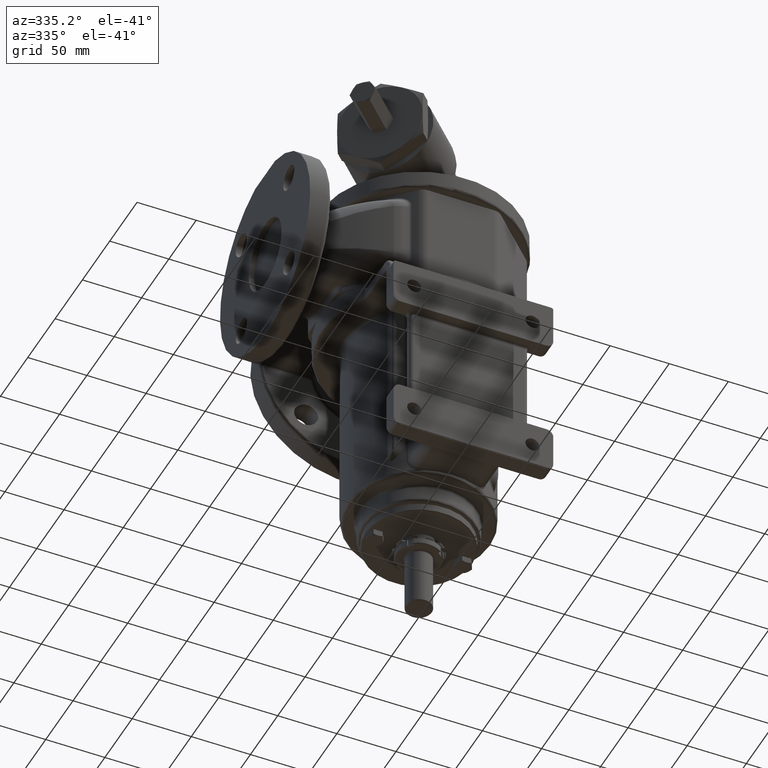
[diagram: clean part render]
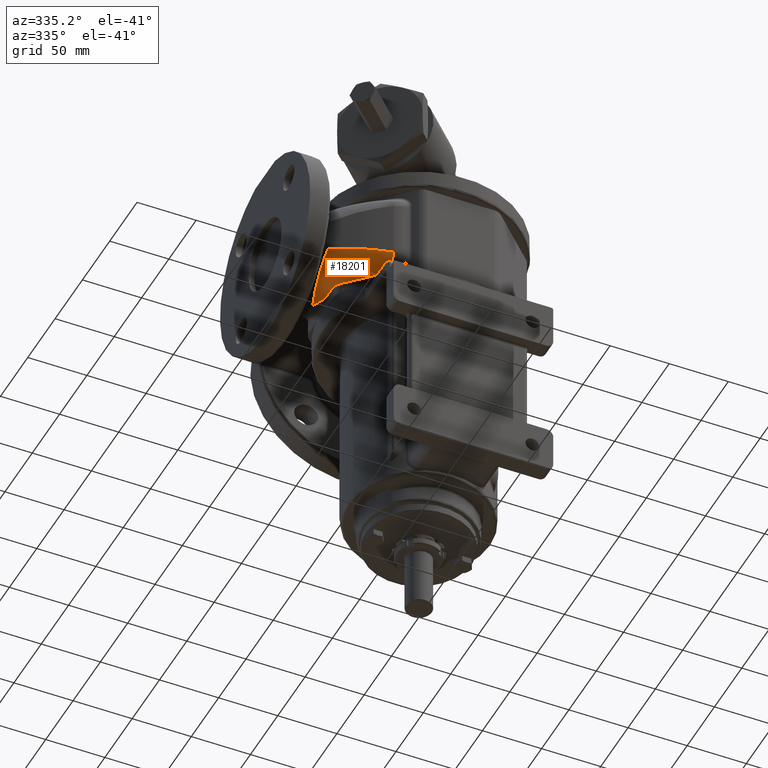
[diagram: same view with one face highlighted and labeled with its STEP entity id]
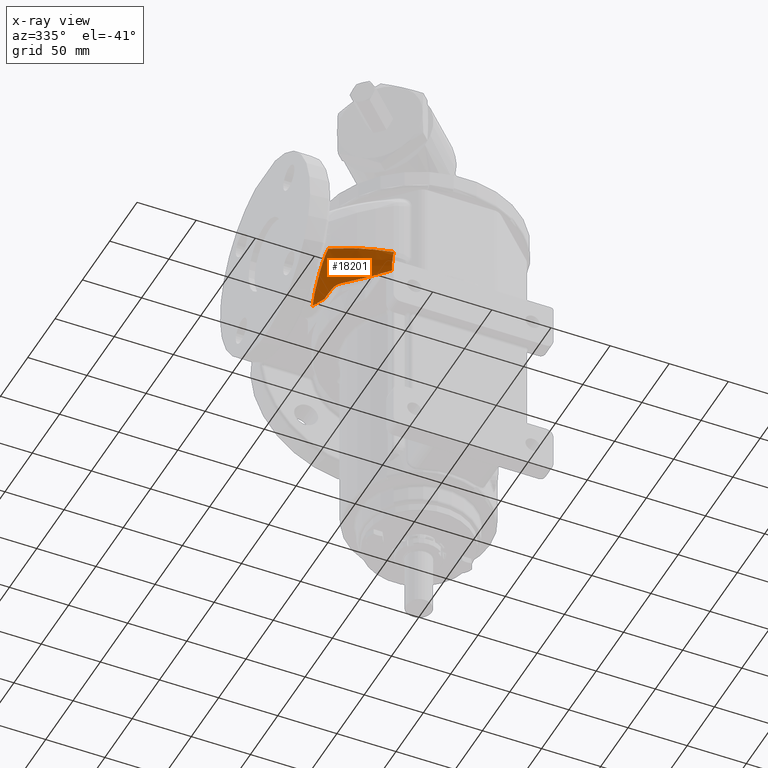
[diagram: x-ray of the same camera — body ghosted, the highlighted face saturated]
A machine part, auxiliary view. The second image highlights one B-rep face of the part: STEP entity #18201.
The next image is the same camera in x-ray: the body ghosted, the highlighted face saturated — about 0% of this face is hidden behind the body in this view.
In plain terms, the highlighted face is a freeform B-spline surface patch.
Its self-contained STEP definition (entity closure, byte-faithful):
#1606=CARTESIAN_POINT('',(-8.047413439077E1,-3.208808836774E1,
1.308507916745E1));
#1607=CARTESIAN_POINT('',(-7.798800857664E1,-3.462170206092E1,
1.295863965837E1));
#1608=CARTESIAN_POINT('',(-7.324966254225E1,-3.941239079710E1,
1.281667196551E1));
#1609=CARTESIAN_POINT('',(-6.675518718592E1,-4.585366600629E1,
1.281283031524E1));
#1610=CARTESIAN_POINT('',(-6.085321075917E1,-5.157657148895E1,
1.298604054118E1));
#1611=CARTESIAN_POINT('',(-5.551644056877E1,-5.662616673302E1,
1.335296136524E1));
#1612=CARTESIAN_POINT('',(-5.231638036591E1,-5.957968758724E1,
1.375660381942E1));
#1613=CARTESIAN_POINT('',(-5.081152447326E1,-6.095348885946E1,
1.400642323540E1));
#1615=CARTESIAN_POINT('',(-8.446781736933E1,-2.311346333166E1,
1.256506312222E1));
#1616=CARTESIAN_POINT('',(-8.442724705142E1,-2.393726765799E1,
1.265445762699E1));
#1617=CARTESIAN_POINT('',(-8.419282381083E1,-2.556188686391E1,
1.282855758478E1));
#1618=CARTESIAN_POINT('',(-8.338136211917E1,-2.795523119072E1,
1.303339662707E1));
#1619=CARTESIAN_POINT('',(-8.214413099516E1,-3.016988986125E1,
1.313315355132E1));
#1620=CARTESIAN_POINT('',(-8.107241798895E1,-3.147837568122E1,
1.311550645273E1));
#1621=CARTESIAN_POINT('',(-8.047413439077E1,-3.208808836774E1,
1.308507916745E1));
#1623=CARTESIAN_POINT('',(-8.5E1,-1.125532978994E1,1.2E1));
#1624=CARTESIAN_POINT('',(-8.494165248477E1,-1.271121173030E1,
1.200000001406E1));
#1625=CARTESIAN_POINT('',(-8.482295508412E1,-1.553439694534E1,
1.203910573419E1));
#1626=CARTESIAN_POINT('',(-8.464417954935E1,-1.947701580606E1,
1.222457691661E1));
#1627=CARTESIAN_POINT('',(-8.452596820710E1,-2.193267019026E1,
1.243693021975E1));
#1628=CARTESIAN_POINT('',(-8.446781736933E1,-2.311346333166E1,
1.256506312222E1));
#1630=CARTESIAN_POINT('',(-8.984162035951E1,1.852250310862E-10,1.2E1));
#1631=CARTESIAN_POINT('',(-8.937966233508E1,-1.261490178118E0,1.2E1));
#1632=CARTESIAN_POINT('',(-8.840575942735E1,-3.777500725120E0,1.2E1));
#1633=CARTESIAN_POINT('',(-8.679165358766E1,-7.532796190614E0,1.2E1));
#1634=CARTESIAN_POINT('',(-8.561446056205E1,-1.001744117737E1,1.2E1));
#1635=CARTESIAN_POINT('',(-8.5E1,-1.125532978994E1,1.2E1));
#1637=CARTESIAN_POINT('',(-8.984162035951E1,1.852250310862E-10,1.2E1));
#1638=CARTESIAN_POINT('',(-9.085631910902E1,-2.750468309315E0,
1.200000247839E1));
#1639=CARTESIAN_POINT('',(-9.263810933759E1,-8.036610746854E0,
1.236224199165E1));
#1640=CARTESIAN_POINT('',(-9.460349511560E1,-1.501171972855E1,
1.380037807420E1));
#1641=CARTESIAN_POINT('',(-9.598497959125E1,-2.106110522149E1,
1.594221695596E1));
#1642=CARTESIAN_POINT('',(-9.686456147365E1,-2.619884785258E1,
1.862034890517E1));
#1643=CARTESIAN_POINT('',(-9.731134235316E1,-3.048797525212E1,
2.170001408419E1));
#1644=CARTESIAN_POINT('',(-9.737073934403E1,-3.399744608006E1,
2.507963019626E1));
#1645=CARTESIAN_POINT('',(-9.706511664867E1,-3.679392340711E1,
2.868556429009E1));
#1646=CARTESIAN_POINT('',(-9.639342331683E1,-3.893168452364E1,
3.245713508812E1));
#1647=CARTESIAN_POINT('',(-9.567978824446E1,-3.994711296998E1,
3.504961178352E1));
#1648=CARTESIAN_POINT('',(-9.525158904514E1,-4.035556962305E1,
3.634007047109E1));
#1650=CARTESIAN_POINT('',(-9.525158904514E1,-4.035556962305E1,
3.634007047109E1));
#1651=CARTESIAN_POINT('',(-9.215633523432E1,-4.330811242351E1,
3.549994077137E1));
#1652=CARTESIAN_POINT('',(-8.569763391295E1,-4.891962892648E1,
3.380445024207E1));
#1653=CARTESIAN_POINT('',(-7.526501980612E1,-5.640522270560E1,
3.127221614836E1));
#1654=CARTESIAN_POINT('',(-6.421840096117E1,-6.286897364281E1,
2.882689996017E1));
#1655=CARTESIAN_POINT('',(-5.654658103833E1,-6.645349886389E1,
2.730641998006E1));
#1656=CARTESIAN_POINT('',(-5.264669600091E1,-6.806302520788E1,
2.658395863375E1));
#1691=CARTESIAN_POINT('',(-5.081152447326E1,-6.095348885946E1,
1.400642323540E1));
#1704=CARTESIAN_POINT('',(-4.486805216066E1,-5.603509425772E1,
2.608579098940E1));
#1705=DIRECTION('',(-8.217274336038E-1,5.390783045593E-1,1.848204707720E-1));
#1706=DIRECTION('',(-4.146788748109E-1,-3.431587170929E-1,-8.427832020566E-1));
#1707=AXIS2_PLACEMENT_3D('',#1704,#1705,#1706);
#4865=CARTESIAN_POINT('',(-9.525158904514E1,-4.035556962305E1,
3.634007047109E1));
#13229=CARTESIAN_POINT('',(-5.264669600091E1,-6.806302520788E1,
2.658395863375E1));
#13231=VERTEX_POINT('',#13229);
#13239=VERTEX_POINT('',#4865);
#13240=VERTEX_POINT('',#1637);
#13262=VERTEX_POINT('',#1691);
#13264=VERTEX_POINT('',#1606);
#13266=VERTEX_POINT('',#1615);
#13268=VERTEX_POINT('',#1623);
#17797=CARTESIAN_POINT('',(-1.154019871822E2,-1.614534470657E1,
4.334210592177E1));
#17798=CARTESIAN_POINT('',(-1.153111730169E2,-1.628390496585E1,
4.331050594327E1));
#17799=CARTESIAN_POINT('',(-1.150493979986E2,-1.668174541163E1,
4.321962507061E1));
#17800=CARTESIAN_POINT('',(-1.146136431289E2,-1.733659190204E1,
4.306932015101E1));
#17801=CARTESIAN_POINT('',(-1.140925715511E2,-1.810831305115E1,
4.289107145283E1));
#17802=CARTESIAN_POINT('',(-1.135663116853E2,-1.887649378418E1,
4.271250640172E1));
#17803=CARTESIAN_POINT('',(-1.130348874889E2,-1.964109942748E1,
4.253362190865E1));
#17804=CARTESIAN_POINT('',(-1.124983231439E2,-2.040209547117E1,
4.235441488076E1));
#17805=CARTESIAN_POINT('',(-1.119566430572E2,-2.115944757045E1,
4.217488222207E1));
#17806=CARTESIAN_POINT('',(-1.114098718582E2,-2.191312154733E1,
4.199502083434E1));
#17807=CARTESIAN_POINT('',(-1.108580343979E2,-2.266308339220E1,
4.181482761785E1));
#17808=CARTESIAN_POINT('',(-1.103011557474E2,-2.340929926547E1,
4.163429947230E1));
#17809=CARTESIAN_POINT('',(-1.097392611965E2,-2.415173549921E1,
4.145343329767E1));
#17810=CARTESIAN_POINT('',(-1.091723762523E2,-2.489035859870E1,
4.127222599511E1));
#17811=CARTESIAN_POINT('',(-1.086005266375E2,-2.562513524408E1,
4.109067446785E1));
#17812=CARTESIAN_POINT('',(-1.080237382893E2,-2.635603229192E1,
4.090877562214E1));
#17813=CARTESIAN_POINT('',(-1.074420373573E2,-2.708301677684E1,
4.072652636822E1));
#17814=CARTESIAN_POINT('',(-1.068554502025E2,-2.780605591302E1,
4.054392362124E1));
#17815=CARTESIAN_POINT('',(-1.062640033953E2,-2.852511709583E1,
4.036096430232E1));
#17816=CARTESIAN_POINT('',(-1.056677237142E2,-2.924016790334E1,
4.017764533949E1));
#17817=CARTESIAN_POINT('',(-1.050666381438E2,-2.995117609787E1,
3.999396366878E1));
#17818=CARTESIAN_POINT('',(-1.044607738737E2,-3.065810962752E1,
3.980991623518E1));
#17819=CARTESIAN_POINT('',(-1.038501582961E2,-3.136093662768E1,
3.962549999391E1));
#17820=CARTESIAN_POINT('',(-1.032348190047E2,-3.205962542249E1,
3.944071191093E1));
#17821=CARTESIAN_POINT('',(-1.026147837923E2,-3.275414452639E1,
3.925554896553E1));
#17822=CARTESIAN_POINT('',(-1.019900806499E2,-3.344446264551E1,
3.907000814783E1));
#17823=CARTESIAN_POINT('',(-1.013607377645E2,-3.413054867864E1,
3.888408646675E1));
#17824=CARTESIAN_POINT('',(-1.007267835133E2,-3.481237172275E1,
3.869778094970E1));
#17825=CARTESIAN_POINT('',(-1.000882464907E2,-3.548990105041E1,
3.851108856017E1));
#17826=CARTESIAN_POINT('',(-9.944515535289E1,-3.616310623252E1,
3.832400684102E1));
#17827=CARTESIAN_POINT('',(-9.879753955692E1,-3.683195656868E1,
3.813653029312E1));
#17828=CARTESIAN_POINT('',(-9.814542594915E1,-3.749642367162E1,
3.794866844488E1));
#17829=CARTESIAN_POINT('',(-9.748883283792E1,-3.815649133436E1,
3.776035548910E1));
#17830=CARTESIAN_POINT('',(-9.682771816579E1,-3.881218874127E1,
3.757183194261E1));
#17831=CARTESIAN_POINT('',(-9.616204298576E1,-3.946354001789E1,
3.738333112225E1));
#17832=CARTESIAN_POINT('',(-9.549183452317E1,-4.011051614867E1,
3.719479551788E1));
#17833=CARTESIAN_POINT('',(-9.481712723623E1,-4.075307779053E1,
3.700626475249E1));
#17834=CARTESIAN_POINT('',(-9.413795953298E1,-4.139118376433E1,
3.681775091954E1));
#17835=CARTESIAN_POINT('',(-9.345436939683E1,-4.202479383661E1,
3.662927436067E1));
#17836=CARTESIAN_POINT('',(-9.276639566357E1,-4.265386792552E1,
3.644085308993E1));
#17837=CARTESIAN_POINT('',(-9.207407785304E1,-4.327836615721E1,
3.625250595872E1));
#17838=CARTESIAN_POINT('',(-9.137745523849E1,-4.389824974435E1,
3.606425147892E1));
#17839=CARTESIAN_POINT('',(-9.067657149759E1,-4.451347684854E1,
3.587610935598E1));
#17840=CARTESIAN_POINT('',(-8.997168606242E1,-4.512381983689E1,
3.568815673622E1));
#17841=CARTESIAN_POINT('',(-8.926347619625E1,-4.572870663945E1,
3.550057964635E1));
#17842=CARTESIAN_POINT('',(-8.855281739516E1,-4.632743195791E1,
3.531361119798E1));
#17843=CARTESIAN_POINT('',(-8.784036679137E1,-4.691951109407E1,
3.512742146987E1));
#17844=CARTESIAN_POINT('',(-8.712636327791E1,-4.750482548915E1,
3.494206836125E1));
#17845=CARTESIAN_POINT('',(-8.641084545396E1,-4.808342388683E1,
3.475755726058E1));
#17846=CARTESIAN_POINT('',(-8.569385624514E1,-4.865535027771E1,
3.457389483226E1));
#17847=CARTESIAN_POINT('',(-8.497543691527E1,-4.922064884308E1,
3.439108747733E1));
#17848=CARTESIAN_POINT('',(-8.425562871233E1,-4.977936267236E1,
3.420914171168E1));
#17849=CARTESIAN_POINT('',(-8.353447244704E1,-5.033153413297E1,
3.402806422623E1));
#17850=CARTESIAN_POINT('',(-8.281201143446E1,-5.087720271109E1,
3.384786201104E1));
#17851=CARTESIAN_POINT('',(-8.208829071210E1,-5.141640569897E1,
3.366854435413E1));
#17852=CARTESIAN_POINT('',(-8.136335404473E1,-5.194918062487E1,
3.349012023516E1));
#17853=CARTESIAN_POINT('',(-8.063724133380E1,-5.247556713472E1,
3.331259587336E1));
#17854=CARTESIAN_POINT('',(-7.990998880382E1,-5.299560660048E1,
3.313597724138E1));
#17855=CARTESIAN_POINT('',(-7.918163237905E1,-5.350933966482E1,
3.296027026752E1));
#17856=CARTESIAN_POINT('',(-7.845220776021E1,-5.401680621625E1,
3.278548101880E1));
#17857=CARTESIAN_POINT('',(-7.772175038894E1,-5.451804545043E1,
3.261161564875E1));
#17858=CARTESIAN_POINT('',(-7.699029547434E1,-5.501309588424E1,
3.243868041405E1));
#17859=CARTESIAN_POINT('',(-7.625787799100E1,-5.550199538889E1,
3.226668167021E1));
#17860=CARTESIAN_POINT('',(-7.552453268739E1,-5.598478121445E1,
3.209562587316E1));
#17861=CARTESIAN_POINT('',(-7.479029408945E1,-5.646149001643E1,
3.192551957872E1));
#17862=CARTESIAN_POINT('',(-7.405519650508E1,-5.693215788041E1,
3.175636944242E1));
#17863=CARTESIAN_POINT('',(-7.331927402771E1,-5.739682034627E1,
3.158818221886E1));
#17864=CARTESIAN_POINT('',(-7.258256053951E1,-5.785551243129E1,
3.142096476106E1));
#17865=CARTESIAN_POINT('',(-7.184508971410E1,-5.830826865271E1,
3.125472401946E1));
#17866=CARTESIAN_POINT('',(-7.110689501854E1,-5.875512304948E1,
3.108946704083E1));
#17867=CARTESIAN_POINT('',(-7.036800971496E1,-5.919610920330E1,
3.092520096692E1));
#17868=CARTESIAN_POINT('',(-6.962846686200E1,-5.963126025875E1,
3.076193303305E1));
#17869=CARTESIAN_POINT('',(-6.888829931606E1,-6.006060894267E1,
3.059967056666E1));
#17870=CARTESIAN_POINT('',(-6.814753973203E1,-6.048418758275E1,
3.043842098557E1));
#17871=CARTESIAN_POINT('',(-6.740622056365E1,-6.090202812570E1,
3.027819179625E1));
#17872=CARTESIAN_POINT('',(-6.666437406314E1,-6.131416215476E1,
3.011899059176E1));
#17873=CARTESIAN_POINT('',(-6.592203228054E1,-6.172062090663E1,
2.996082504973E1));
#17874=CARTESIAN_POINT('',(-6.517922706288E1,-6.212143528771E1,
2.980370293013E1));
#17875=CARTESIAN_POINT('',(-6.443599005322E1,-6.251663588953E1,
2.964763207310E1));
#17876=CARTESIAN_POINT('',(-6.369235268961E1,-6.290625300360E1,
2.949262039670E1));
#17877=CARTESIAN_POINT('',(-6.294834620364E1,-6.329031663563E1,
2.933867589447E1));
#17878=CARTESIAN_POINT('',(-6.220400161890E1,-6.366885651921E1,
2.918580663311E1));
#17879=CARTESIAN_POINT('',(-6.145934974904E1,-6.404190212896E1,
2.903402074987E1));
#17880=CARTESIAN_POINT('',(-6.071442119566E1,-6.440948269313E1,
2.888332645006E1));
#17881=CARTESIAN_POINT('',(-5.996924634594E1,-6.477162720568E1,
2.873373200434E1));
#17882=CARTESIAN_POINT('',(-5.922385536913E1,-6.512836443833E1,
2.858524574592E1));
#17883=CARTESIAN_POINT('',(-5.847827821929E1,-6.547972294894E1,
2.843787606869E1));
#17884=CARTESIAN_POINT('',(-5.773254461135E1,-6.582573110206E1,
2.829163142104E1));
#17885=CARTESIAN_POINT('',(-5.698668408806E1,-6.616641704640E1,
2.814652031436E1));
#17886=CARTESIAN_POINT('',(-5.624072582655E1,-6.650180881168E1,
2.800255129008E1));
#17887=CARTESIAN_POINT('',(-5.549469906184E1,-6.683193412483E1,
2.785973298012E1));
#17888=CARTESIAN_POINT('',(-5.474863241548E1,-6.715682071690E1,
2.771807402592E1));
#17889=CARTESIAN_POINT('',(-5.400255401622E1,-6.747649627440E1,
2.757758297585E1));
#17890=CARTESIAN_POINT('',(-5.325649516999E1,-6.779098685764E1,
2.743826925770E1));
#17891=CARTESIAN_POINT('',(-5.252123666843E1,-6.809586118182E1,
2.730213228370E1));
#17892=CARTESIAN_POINT('',(-5.203422501330E1,-6.829454272885E1,
2.721271405488E1));
#17893=CARTESIAN_POINT('',(-5.179614434476E1,-6.839089564910E1,
2.716918234350E1));
#17894=CARTESIAN_POINT('',(-1.183931529197E2,-1.266864170952E1,
2.487090396824E1));
#17895=CARTESIAN_POINT('',(-1.183034634743E2,-1.281456522079E1,
2.485792716670E1));
#17896=CARTESIAN_POINT('',(-1.180448622284E2,-1.323355124189E1,
2.482060615860E1));
#17897=CARTESIAN_POINT('',(-1.176140682440E2,-1.392322170413E1,
2.475888215741E1));
#17898=CARTESIAN_POINT('',(-1.170984381640E2,-1.473601012506E1,
2.468568280432E1));
#17899=CARTESIAN_POINT('',(-1.165771908589E2,-1.554509766509E1,
2.461235353825E1));
#17900=CARTESIAN_POINT('',(-1.160503526661E2,-1.635044762953E1,
2.453889309058E1));
#17901=CARTESIAN_POINT('',(-1.155179501183E2,-1.715202354882E1,
2.446530019123E1));
#17902=CARTESIAN_POINT('',(-1.149800099416E2,-1.794978917792E1,
2.439157356882E1));
#17903=CARTESIAN_POINT('',(-1.144365590530E2,-1.874370849617E1,
2.431771195100E1));
#17904=CARTESIAN_POINT('',(-1.138876245579E2,-1.953374570688E1,
2.424371406487E1));
#17905=CARTESIAN_POINT('',(-1.133332337475E2,-2.031986523708E1,
2.416957863725E1));
#17906=CARTESIAN_POINT('',(-1.127734140968E2,-2.110203173715E1,
2.409530439510E1));
#17907=CARTESIAN_POINT('',(-1.122081932622E2,-2.188021008046E1,
2.402089006585E1));
#17908=CARTESIAN_POINT('',(-1.116375990788E2,-2.265436536297E1,
2.394633437777E1));
#17909=CARTESIAN_POINT('',(-1.110616595588E2,-2.342446290283E1,
2.387163606041E1));
#17910=CARTESIAN_POINT('',(-1.104804028889E2,-2.419046823998E1,
2.379679384491E1));
#17911=CARTESIAN_POINT('',(-1.098938574280E2,-2.495234713567E1,
2.372180646447E1));
#17912=CARTESIAN_POINT('',(-1.093020517054E2,-2.571006557198E1,
2.364667265470E1));
#17913=CARTESIAN_POINT('',(-1.087050144184E2,-2.646358975138E1,
2.357139115409E1));
#17914=CARTESIAN_POINT('',(-1.081027744305E2,-2.721288609617E1,
2.349596070439E1));
#17915=CARTESIAN_POINT('',(-1.074953607692E2,-2.795792124794E1,
2.342038005102E1));
#17916=CARTESIAN_POINT('',(-1.068828026239E2,-2.869866206718E1,
2.334464794363E1));
#17917=CARTESIAN_POINT('',(-1.062651293442E2,-2.943507563205E1,
2.326876313626E1));
#17918=CARTESIAN_POINT('',(-1.056423704376E2,-3.016712923970E1,
2.319272438842E1));
#17919=CARTESIAN_POINT('',(-1.050145555686E2,-3.089479040087E1,
2.311653046410E1));
#17920=CARTESIAN_POINT('',(-1.043817145560E2,-3.161802684786E1,
2.304018013497E1));
#17921=CARTESIAN_POINT('',(-1.037438773624E2,-3.233680653574E1,
2.296367218031E1));
#17922=CARTESIAN_POINT('',(-1.031010741684E2,-3.305109750840E1,
2.288700535316E1));
#17923=CARTESIAN_POINT('',(-1.024533349256E2,-3.376086886309E1,
2.281017864447E1));
#17924=CARTESIAN_POINT('',(-1.018006916300E2,-3.446608541180E1,
2.273318979598E1));
#17925=CARTESIAN_POINT('',(-1.011431674909E2,-3.516673405065E1,
2.265604272060E1));
#17926=CARTESIAN_POINT('',(-1.004808049462E2,-3.586272377968E1,
2.257871039406E1));
#17927=CARTESIAN_POINT('',(-9.981346203856E1,-3.655441490197E1,
2.250129158663E1));
#17928=CARTESIAN_POINT('',(-9.914100781686E1,-3.724211016591E1,
2.242388211189E1));
#17929=CARTESIAN_POINT('',(-9.846349656997E1,-3.792566993034E1,
2.234645835279E1));
#17930=CARTESIAN_POINT('',(-9.778095381066E1,-3.860506254428E1,
2.226903658086E1));
#17931=CARTESIAN_POINT('',(-9.709342034610E1,-3.928021886822E1,
2.219162176239E1));
#17932=CARTESIAN_POINT('',(-9.640093362342E1,-3.995108141575E1,
2.211422225083E1));
#17933=CARTESIAN_POINT('',(-9.570353325365E1,-4.061758986490E1,
2.203684544382E1));
#17934=CARTESIAN_POINT('',(-9.500125959378E1,-4.127968512520E1,
2.195949908284E1));
#17935=CARTESIAN_POINT('',(-9.429415316736E1,-4.193730911489E1,
2.188219076996E1));
#17936=CARTESIAN_POINT('',(-9.358225927867E1,-4.259040071483E1,
2.180492859738E1));
#17937=CARTESIAN_POINT('',(-9.286584286361E1,-4.323870155900E1,
2.172774424590E1));
#17938=CARTESIAN_POINT('',(-9.214559474899E1,-4.388158681808E1,
2.165071410899E1));
#17939=CARTESIAN_POINT('',(-9.142240959282E1,-4.451828869825E1,
2.157393391591E1));
#17940=CARTESIAN_POINT('',(-9.069696206885E1,-4.514827277547E1,
2.149747351097E1));
#17941=CARTESIAN_POINT('',(-8.996950220845E1,-4.577139388982E1,
2.142135667099E1));
#17942=CARTESIAN_POINT('',(-8.924007635388E1,-4.638768536840E1,
2.134558560877E1));
#17943=CARTESIAN_POINT('',(-8.850873539597E1,-4.699717602674E1,
2.127016306112E1));
#17944=CARTESIAN_POINT('',(-8.777552865833E1,-4.759989543542E1,
2.119509165667E1));
#17945=CARTESIAN_POINT('',(-8.704050559546E1,-4.819587248566E1,
2.112037407123E1));
#17946=CARTESIAN_POINT('',(-8.630371525905E1,-4.878513597504E1,
2.104601305248E1));
#17947=CARTESIAN_POINT('',(-8.556520965273E1,-4.936771155180E1,
2.097201147095E1));
#17948=CARTESIAN_POINT('',(-8.482504164480E1,-4.994362512003E1,
2.089837314086E1));
#17949=CARTESIAN_POINT('',(-8.408326304227E1,-5.051290294E1,2.082510174975E1));
#17950=CARTESIAN_POINT('',(-8.333992292242E1,-5.107557170090E1,
2.075219985164E1));
#17951=CARTESIAN_POINT('',(-8.259506639111E1,-5.163166104996E1,
2.067966989922E1));
#17952=CARTESIAN_POINT('',(-8.184873839842E1,-5.218120019032E1,
2.060751432701E1));
#17953=CARTESIAN_POINT('',(-8.110098371531E1,-5.272421804400E1,
2.053573562648E1));
#17954=CARTESIAN_POINT('',(-8.035184691606E1,-5.326074325507E1,
2.046433632463E1));
#17955=CARTESIAN_POINT('',(-7.960137239306E1,-5.379080420821E1,
2.039331899082E1));
#17956=CARTESIAN_POINT('',(-7.884960435072E1,-5.431442905095E1,
2.032268623499E1));
#17957=CARTESIAN_POINT('',(-7.809658680787E1,-5.483164571126E1,
2.025244070833E1));
#17958=CARTESIAN_POINT('',(-7.734236359591E1,-5.534248191663E1,
2.018258510305E1));
#17959=CARTESIAN_POINT('',(-7.658697835782E1,-5.584696521154E1,
2.011312215228E1));
#17960=CARTESIAN_POINT('',(-7.583047454636E1,-5.634512297455E1,
2.004405462987E1));
#17961=CARTESIAN_POINT('',(-7.507289542198E1,-5.683698243473E1,
1.997538535007E1));
#17962=CARTESIAN_POINT('',(-7.431428405022E1,-5.732257068736E1,
1.990711716713E1));
#17963=CARTESIAN_POINT('',(-7.355468329851E1,-5.780191470930E1,
1.983925297488E1));
#17964=CARTESIAN_POINT('',(-7.279413583266E1,-5.827504137359E1,
1.977179570612E1));
#17965=CARTESIAN_POINT('',(-7.203268411318E1,-5.874197746337E1,
1.970474833212E1));
#17966=CARTESIAN_POINT('',(-7.127037039145E1,-5.920274968515E1,
1.963811386193E1));
#17967=CARTESIAN_POINT('',(-7.050723670556E1,-5.965738468142E1,
1.957189534176E1));
#17968=CARTESIAN_POINT('',(-6.974332487557E1,-6.010590904296E1,
1.950609585420E1));
#17969=CARTESIAN_POINT('',(-6.897867649831E1,-6.054834932063E1,
1.944071851741E1));
#17970=CARTESIAN_POINT('',(-6.821333294185E1,-6.098473203670E1,
1.937576648427E1));
#17971=CARTESIAN_POINT('',(-6.744733533976E1,-6.141508369549E1,
1.931124294148E1));
#17972=CARTESIAN_POINT('',(-6.668072458543E1,-6.183943079343E1,
1.924715110866E1));
#17973=CARTESIAN_POINT('',(-6.591354132619E1,-6.225779982846E1,
1.918349423742E1));
#17974=CARTESIAN_POINT('',(-6.514582595728E1,-6.267021730903E1,
1.912027561039E1));
#17975=CARTESIAN_POINT('',(-6.437761861553E1,-6.307670976253E1,
1.905749854022E1));
#17976=CARTESIAN_POINT('',(-6.360895917276E1,-6.347730374328E1,
1.899516636855E1));
#17977=CARTESIAN_POINT('',(-6.283988722918E1,-6.387202584005E1,
1.893328246495E1));
#17978=CARTESIAN_POINT('',(-6.207044210635E1,-6.426090268311E1,
1.887185022584E1));
#17979=CARTESIAN_POINT('',(-6.130066283908E1,-6.464396095138E1,
1.881087307334E1));
#17980=CARTESIAN_POINT('',(-6.053058817412E1,-6.502122737539E1,
1.875035445445E1));
#17981=CARTESIAN_POINT('',(-5.976025654011E1,-6.539272875462E1,
1.869029783858E1));
#17982=CARTESIAN_POINT('',(-5.898970611522E1,-6.575849192477E1,
1.863070672101E1));
#17983=CARTESIAN_POINT('',(-5.821897461511E1,-6.611854386467E1,
1.857158460936E1));
#17984=CARTESIAN_POINT('',(-5.744809974793E1,-6.647291147009E1,
1.851293504838E1));
#17985=CARTESIAN_POINT('',(-5.667711845902E1,-6.682162193921E1,
1.845476158677E1));
#17986=CARTESIAN_POINT('',(-5.590606719465E1,-6.716470256245E1,
1.839706773499E1));
#17987=CARTESIAN_POINT('',(-5.513498536057E1,-6.750217937207E1,
1.833985736457E1));
#17988=CARTESIAN_POINT('',(-5.437502338202E1,-6.782929559848E1,
1.828395155157E1));
#17989=CARTESIAN_POINT('',(-5.387162528127E1,-6.804244396239E1,
1.824723119034E1));
#17990=CARTESIAN_POINT('',(-5.362552917808E1,-6.814580582888E1,
1.822935450165E1));
#17991=CARTESIAN_POINT('',(-1.071261549717E2,-5.309484586660E0,
1.141291743660E1));
#17992=CARTESIAN_POINT('',(-1.070567454044E2,-5.449310546114E0,
1.141350934949E1));
#17993=CARTESIAN_POINT('',(-1.068564453281E2,-5.850940922890E0,
1.141521167835E1));
#17994=CARTESIAN_POINT('',(-1.065219586560E2,-6.512765448688E0,
1.141802710499E1));
#17995=CARTESIAN_POINT('',(-1.061203506647E2,-7.293853986480E0,
1.142136595855E1));
#17996=CARTESIAN_POINT('',(-1.057131253332E2,-8.072506685970E0,
1.142471073788E1));
#17997=CARTESIAN_POINT('',(-1.053002982460E2,-8.848686868144E0,
1.142806150081E1));
#17998=CARTESIAN_POINT('',(-1.048818851771E2,-9.622358015103E0,
1.143141830529E1));
#17999=CARTESIAN_POINT('',(-1.044579020874E2,-1.039348376925E1,
1.143478120929E1));
#18000=CARTESIAN_POINT('',(-1.040283651217E2,-1.116202793273E1,
1.143815027086E1));
#18001=CARTESIAN_POINT('',(-1.035932906059E2,-1.192795446665E1,
1.144152554806E1));
#18002=CARTESIAN_POINT('',(-1.031526950443E2,-1.269122749042E1,
1.144490709896E1));
#18003=CARTESIAN_POINT('',(-1.027065951170E2,-1.345181128087E1,
1.144829498163E1));
#18004=CARTESIAN_POINT('',(-1.022550076770E2,-1.420967027147E1,
1.145168925411E1));
#18005=CARTESIAN_POINT('',(-1.017979497478E2,-1.496476905138E1,
1.145508997442E1));
#18006=CARTESIAN_POINT('',(-1.013354385207E2,-1.571707236455E1,
1.145849720049E1));
#18007=CARTESIAN_POINT('',(-1.008674913521E2,-1.646654510867E1,
1.146191099022E1));
#18008=CARTESIAN_POINT('',(-1.003941257616E2,-1.721315233421E1,
1.146533140138E1));
#18009=CARTESIAN_POINT('',(-9.991535942880E1,-1.795685924323E1,
1.146875849164E1));
#18010=CARTESIAN_POINT('',(-9.943121019163E1,-1.869763118832E1,
1.147219231854E1));
#18011=CARTESIAN_POINT('',(-9.894169604354E1,-1.943543367137E1,
1.147563293949E1));
#18012=CARTESIAN_POINT('',(-9.844683513146E1,-2.017023234230E1,
1.147908041170E1));
#18013=CARTESIAN_POINT('',(-9.794664575345E1,-2.090199299795E1,
1.148253479220E1));
#18014=CARTESIAN_POINT('',(-9.744114635672E1,-2.163068158015E1,
1.148599613784E1));
#18015=CARTESIAN_POINT('',(-9.693035553510E1,-2.235626417607E1,
1.148946450518E1));
#18016=CARTESIAN_POINT('',(-9.641429202781E1,-2.307870701234E1,
1.149293995061E1));
#18017=CARTESIAN_POINT('',(-9.589297471698E1,-2.379797646170E1,
1.149642253016E1));
#18018=CARTESIAN_POINT('',(-9.536642261771E1,-2.451403904331E1,
1.149991229951E1));
#18019=CARTESIAN_POINT('',(-9.483465494293E1,-2.522686129437E1,
1.150340931553E1));
#18020=CARTESIAN_POINT('',(-9.429769071308E1,-2.593641068565E1,
1.150691362426E1));
#18021=CARTESIAN_POINT('',(-9.375555073326E1,-2.664265055135E1,
1.151042532869E1));
#18022=CARTESIAN_POINT('',(-9.320824818688E1,-2.734556511836E1,
1.151394425035E1));
#18023=CARTESIAN_POINT('',(-9.265581366021E1,-2.804506586856E1,
1.151747162191E1));
#18024=CARTESIAN_POINT('',(-9.209811788755E1,-2.874149303266E1,
1.152100293812E1));
#18025=CARTESIAN_POINT('',(-9.153503200994E1,-2.943512380227E1,
1.152453382865E1));
#18026=CARTESIAN_POINT('',(-9.096658744683E1,-3.012581439441E1,
1.152806537073E1));
#18027=CARTESIAN_POINT('',(-9.039279024212E1,-3.081352181614E1,
1.153159682217E1));
#18028=CARTESIAN_POINT('',(-8.981366002822E1,-3.149816720436E1,
1.153512795644E1));
#18029=CARTESIAN_POINT('',(-8.922921380491E1,-3.217968237223E1,
1.153865839251E1));
#18030=CARTESIAN_POINT('',(-8.863947075375E1,-3.285799608739E1,
1.154218779296E1));
#18031=CARTESIAN_POINT('',(-8.804445100631E1,-3.353303791174E1,
1.154571580466E1));
#18032=CARTESIAN_POINT('',(-8.744417517182E1,-3.420473806384E1,
1.154924208088E1));
#18033=CARTESIAN_POINT('',(-8.683866825874E1,-3.487302326025E1,
1.155276625248E1));
#18034=CARTESIAN_POINT('',(-8.622814281192E1,-3.553761759718E1,
1.155628687443E1));
#18035=CARTESIAN_POINT('',(-8.561317699451E1,-3.619786671764E1,
1.155980046216E1));
#18036=CARTESIAN_POINT('',(-8.499452841226E1,-3.685296396539E1,
1.156330264916E1));
#18037=CARTESIAN_POINT('',(-8.437277210784E1,-3.750233731541E1,
1.156679024961E1));
#18038=CARTESIAN_POINT('',(-8.374812230591E1,-3.814581321782E1,
1.157026217898E1));
#18039=CARTESIAN_POINT('',(-8.312061925013E1,-3.878340197168E1,
1.157371833634E1));
#18040=CARTESIAN_POINT('',(-8.249030737791E1,-3.941510939327E1,
1.157715859685E1));
#18041=CARTESIAN_POINT('',(-8.185723006330E1,-4.004094225033E1,
1.158058284061E1));
#18042=CARTESIAN_POINT('',(-8.122143107592E1,-4.066090677805E1,
1.158399094556E1));
#18043=CARTESIAN_POINT('',(-8.058295411339E1,-4.127500926483E1,
1.158738278639E1));
#18044=CARTESIAN_POINT('',(-7.994184572189E1,-4.188325292702E1,
1.159075823214E1));
#18045=CARTESIAN_POINT('',(-7.929815346073E1,-4.248564118862E1,
1.159411710885E1));
#18046=CARTESIAN_POINT('',(-7.865192422514E1,-4.308217794703E1,
1.159745924832E1));
#18047=CARTESIAN_POINT('',(-7.800320286075E1,-4.367286792216E1,
1.160078453405E1));
#18048=CARTESIAN_POINT('',(-7.735203100571E1,-4.425771904673E1,
1.160409285415E1));
#18049=CARTESIAN_POINT('',(-7.669845041723E1,-4.483673897704E1,
1.160738409760E1));
#18050=CARTESIAN_POINT('',(-7.604250294575E1,-4.540993524017E1,
1.161065815073E1));
#18051=CARTESIAN_POINT('',(-7.538423051723E1,-4.597731523903E1,
1.161391489830E1));
#18052=CARTESIAN_POINT('',(-7.472367514323E1,-4.653888626704E1,
1.161715422309E1));
#18053=CARTESIAN_POINT('',(-7.406087891275E1,-4.709465552867E1,
1.162037600608E1));
#18054=CARTESIAN_POINT('',(-7.339588399168E1,-4.764463015507E1,
1.162358012631E1));
#18055=CARTESIAN_POINT('',(-7.272873261842E1,-4.818881722135E1,
1.162676646100E1));
#18056=CARTESIAN_POINT('',(-7.205946710046E1,-4.872722376261E1,
1.162993488548E1));
#18057=CARTESIAN_POINT('',(-7.138812981011E1,-4.925985678972E1,
1.163308527323E1));
#18058=CARTESIAN_POINT('',(-7.071476318011E1,-4.978672330448E1,
1.163621749587E1));
#18059=CARTESIAN_POINT('',(-7.003940969873E1,-5.030783031448E1,
1.163933142321E1));
#18060=CARTESIAN_POINT('',(-6.936211190445E1,-5.082318484757E1,
1.164242692327E1));
#18061=CARTESIAN_POINT('',(-6.868291238028E1,-5.133279396587E1,
1.164550386226E1));
#18062=CARTESIAN_POINT('',(-6.800185374797E1,-5.183666477922E1,
1.164856210466E1));
#18063=CARTESIAN_POINT('',(-6.731897866209E1,-5.233480445802E1,
1.165160151321E1));
#18064=CARTESIAN_POINT('',(-6.663432980379E1,-5.282722024569E1,
1.165462194897E1));
#18065=CARTESIAN_POINT('',(-6.594794987413E1,-5.331391947091E1,
1.165762327132E1));
#18066=CARTESIAN_POINT('',(-6.525988158686E1,-5.379490955944E1,
1.166060533805E1));
#18067=CARTESIAN_POINT('',(-6.457016766093E1,-5.427019804570E1,
1.166356800534E1));
#18068=CARTESIAN_POINT('',(-6.387885081284E1,-5.473979258370E1,
1.166651112782E1));
#18069=CARTESIAN_POINT('',(-6.318597374901E1,-5.520370095749E1,
1.166943455866E1));
#18070=CARTESIAN_POINT('',(-6.249157915792E1,-5.566193109114E1,
1.167233814952E1));
#18071=CARTESIAN_POINT('',(-6.179570970206E1,-5.611449105829E1,
1.167522175068E1));
#18072=CARTESIAN_POINT('',(-6.109840800970E1,-5.656138909128E1,
1.167808521104E1));
#18073=CARTESIAN_POINT('',(-6.039971666630E1,-5.700263359003E1,
1.168092837817E1));
#18074=CARTESIAN_POINT('',(-5.969967820589E1,-5.743823313033E1,
1.168375109838E1));
#18075=CARTESIAN_POINT('',(-5.899833510202E1,-5.786819647196E1,
1.168655321675E1));
#18076=CARTESIAN_POINT('',(-5.829572975777E1,-5.829253256684E1,
1.168933457718E1));
#18077=CARTESIAN_POINT('',(-5.759190450187E1,-5.871125056286E1,
1.169209502244E1));
#18078=CARTESIAN_POINT('',(-5.688690155847E1,-5.912435982353E1,
1.169483439429E1));
#18079=CARTESIAN_POINT('',(-5.618076310637E1,-5.953186989264E1,
1.169755253329E1));
#18080=CARTESIAN_POINT('',(-5.547353108198E1,-5.993379061284E1,
1.170024927945E1));
#18081=CARTESIAN_POINT('',(-5.476524759367E1,-6.033013187761E1,
1.170292447109E1));
#18082=CARTESIAN_POINT('',(-5.405595422677E1,-6.072090405337E1,
1.170557794632E1));
#18083=CARTESIAN_POINT('',(-5.334569227606E1,-6.110611777061E1,
1.170820954506E1));
#18084=CARTESIAN_POINT('',(-5.263450595648E1,-6.148578234685E1,
1.171081909061E1));
#18085=CARTESIAN_POINT('',(-5.193270032407E1,-6.185451604002E1,
1.171336913144E1));
#18086=CARTESIAN_POINT('',(-5.146726294430E1,-6.209524724611E1,
1.171504406255E1));
#18087=CARTESIAN_POINT('',(-5.123959134202E1,-6.221209512322E1,
1.171585945536E1));
#18088=CARTESIAN_POINT('',(-8.917519303766E1,9.849591977659E-1,
1.201523038716E1));
#18089=CARTESIAN_POINT('',(-8.913158543002E1,8.605925361918E-1,
1.201521503146E1));
#18090=CARTESIAN_POINT('',(-8.900552116455E1,5.031517525985E-1,
1.201517086880E1));
#18091=CARTESIAN_POINT('',(-8.879394597994E1,-8.687626121698E-2,
1.201509782961E1));
#18092=CARTESIAN_POINT('',(-8.853828972075E1,-7.848078957351E-1,
1.201501121141E1));
#18093=CARTESIAN_POINT('',(-8.827744490555E1,-1.482143821537E0,
1.201492443949E1));
#18094=CARTESIAN_POINT('',(-8.801141046163E1,-2.178849401465E0,
1.201483751233E1));
#18095=CARTESIAN_POINT('',(-8.774018552763E1,-2.874890013111E0,
1.201475042844E1));
#18096=CARTESIAN_POINT('',(-8.746376945129E1,-3.570231049663E0,
1.201466318632E1));
#18097=CARTESIAN_POINT('',(-8.718216178720E1,-4.264837920676E0,
1.201457578445E1));
#18098=CARTESIAN_POINT('',(-8.689536229463E1,-4.958676052765E0,
1.201448822134E1));
#18099=CARTESIAN_POINT('',(-8.660337093525E1,-5.651710890244E0,
1.201440049547E1));
#18100=CARTESIAN_POINT('',(-8.630618787089E1,-6.343907895672E0,
1.201431260533E1));
#18101=CARTESIAN_POINT('',(-8.600381346132E1,-7.035232550348E0,
1.201422454943E1));
#18102=CARTESIAN_POINT('',(-8.569624826197E1,-7.725650354715E0,
1.201413632626E1));
#18103=CARTESIAN_POINT('',(-8.538349302170E1,-8.415126828704E0,
1.201404793431E1));
#18104=CARTESIAN_POINT('',(-8.506554868054E1,-9.103627511998E0,
1.201395937208E1));
#18105=CARTESIAN_POINT('',(-8.474241636742E1,-9.791117964218E0,
1.201387063808E1));
#18106=CARTESIAN_POINT('',(-8.441409739797E1,-1.047756376504E1,
1.201378173080E1));
#18107=CARTESIAN_POINT('',(-8.408059327222E1,-1.116293051424E1,
1.201369264876E1));
#18108=CARTESIAN_POINT('',(-8.374190567238E1,-1.184718383162E1,
1.201360339046E1));
#18109=CARTESIAN_POINT('',(-8.339803646063E1,-1.253028935696E1,
1.201351395443E1));
#18110=CARTESIAN_POINT('',(-8.304898767684E1,-1.321221274972E1,
1.201342433918E1));
#18111=CARTESIAN_POINT('',(-8.269476153639E1,-1.389291968891E1,
1.201333454323E1));
#18112=CARTESIAN_POINT('',(-8.233536042800E1,-1.457237587246E1,
1.201324456512E1));
#18113=CARTESIAN_POINT('',(-8.197078691129E1,-1.525054701745E1,
1.201315440339E1));
#18114=CARTESIAN_POINT('',(-8.160104371545E1,-1.592739885784E1,
1.201306405659E1));
#18115=CARTESIAN_POINT('',(-8.122613373441E1,-1.660289714830E1,
1.201297352326E1));
#18116=CARTESIAN_POINT('',(-8.084606003262E1,-1.727700765407E1,
1.201288280194E1));
#18117=CARTESIAN_POINT('',(-8.046082582114E1,-1.794969616005E1,
1.201279189142E1));
#18118=CARTESIAN_POINT('',(-8.007043450751E1,-1.862092852595E1,
1.201270078904E1));
#18119=CARTESIAN_POINT('',(-7.967488960048E1,-1.929067015113E1,
1.201260949943E1));
#18120=CARTESIAN_POINT('',(-7.927418182010E1,-1.995891060577E1,
1.201251799061E1));
#18121=CARTESIAN_POINT('',(-7.886829865255E1,-2.062563235069E1,
1.201242637945E1));
#18122=CARTESIAN_POINT('',(-7.845720602056E1,-2.129080002153E1,
1.201233477933E1));
#18123=CARTESIAN_POINT('',(-7.804087791515E1,-2.195437496161E1,
1.201224316232E1));
#18124=CARTESIAN_POINT('',(-7.761930347584E1,-2.261629142658E1,
1.201215154765E1));
#18125=CARTESIAN_POINT('',(-7.719247182099E1,-2.327648560316E1,
1.201205994121E1));
#18126=CARTESIAN_POINT('',(-7.676037333767E1,-2.393489234996E1,
1.201196835289E1));
#18127=CARTESIAN_POINT('',(-7.632299930687E1,-2.459144618838E1,
1.201187679143E1));
#18128=CARTESIAN_POINT('',(-7.588034216864E1,-2.524608083013E1,
1.201178526600E1));
#18129=CARTESIAN_POINT('',(-7.543239484060E1,-2.589873025388E1,
1.201169378560E1));
#18130=CARTESIAN_POINT('',(-7.497915375677E1,-2.654932430577E1,
1.201160235979E1));
#18131=CARTESIAN_POINT('',(-7.452075639576E1,-2.719759452926E1,
1.201151102607E1));
#18132=CARTESIAN_POINT('',(-7.405761776761E1,-2.784290012127E1,
1.201141987483E1));
#18133=CARTESIAN_POINT('',(-7.359029434456E1,-2.848444532139E1,
1.201132901936E1));
#18134=CARTESIAN_POINT('',(-7.311921134215E1,-2.912165790558E1,
1.201123854229E1));
#18135=CARTESIAN_POINT('',(-7.264452430428E1,-2.975435323021E1,
1.201114847178E1));
#18136=CARTESIAN_POINT('',(-7.216625763410E1,-3.038252643542E1,
1.201105881043E1));
#18137=CARTESIAN_POINT('',(-7.168443923519E1,-3.100616797519E1,
1.201096956149E1));
#18138=CARTESIAN_POINT('',(-7.119909652237E1,-3.162526895141E1,
1.201088072806E1));
#18139=CARTESIAN_POINT('',(-7.071025751051E1,-3.223981971584E1,
1.201079231331E1));
#18140=CARTESIAN_POINT('',(-7.021795054741E1,-3.284981024013E1,
1.201070432049E1));
#18141=CARTESIAN_POINT('',(-6.972220624460E1,-3.345522779448E1,
1.201061675300E1));
#18142=CARTESIAN_POINT('',(-6.922305728146E1,-3.405605734306E1,
1.201052961535E1));
#18143=CARTESIAN_POINT('',(-6.872053598942E1,-3.465228435891E1,
1.201044291191E1));
#18144=CARTESIAN_POINT('',(-6.821467241966E1,-3.524389734883E1,
1.201035664570E1));
#18145=CARTESIAN_POINT('',(-6.770549472472E1,-3.583088713881E1,
1.201027081962E1));
#18146=CARTESIAN_POINT('',(-6.719303139667E1,-3.641324421573E1,
1.201018543655E1));
#18147=CARTESIAN_POINT('',(-6.667731133794E1,-3.699095866603E1,
1.201010049944E1));
#18148=CARTESIAN_POINT('',(-6.615836382559E1,-3.756402024115E1,
1.201001601128E1));
#18149=CARTESIAN_POINT('',(-6.563621852668E1,-3.813241836267E1,
1.200993197511E1));
#18150=CARTESIAN_POINT('',(-6.511090549168E1,-3.869614215159E1,
1.200984839401E1));
#18151=CARTESIAN_POINT('',(-6.458245515582E1,-3.925518044803E1,
1.200976527114E1));
#18152=CARTESIAN_POINT('',(-6.405089833701E1,-3.980952183391E1,
1.200968260966E1));
#18153=CARTESIAN_POINT('',(-6.351626623440E1,-4.035915465406E1,
1.200960041282E1));
#18154=CARTESIAN_POINT('',(-6.297859042641E1,-4.090406703730E1,
1.200951868390E1));
#18155=CARTESIAN_POINT('',(-6.243790286850E1,-4.144424691690E1,
1.200943742622E1));
#18156=CARTESIAN_POINT('',(-6.189423589058E1,-4.197968205084E1,
1.200935664318E1));
#18157=CARTESIAN_POINT('',(-6.134762219397E1,-4.251036004173E1,
1.200927633818E1));
#18158=CARTESIAN_POINT('',(-6.079809484806E1,-4.303626835633E1,
1.200919651470E1));
#18159=CARTESIAN_POINT('',(-6.024568728683E1,-4.355739434461E1,
1.200911717626E1));
#18160=CARTESIAN_POINT('',(-5.969043330516E1,-4.407372525817E1,
1.200903832641E1));
#18161=CARTESIAN_POINT('',(-5.913236705493E1,-4.458524826847E1,
1.200895996877E1));
#18162=CARTESIAN_POINT('',(-5.857152304055E1,-4.509195048475E1,
1.200888210698E1));
#18163=CARTESIAN_POINT('',(-5.800793611413E1,-4.559381897178E1,
1.200880474472E1));
#18164=CARTESIAN_POINT('',(-5.744164147027E1,-4.609084076720E1,
1.200872788574E1));
#18165=CARTESIAN_POINT('',(-5.687267464070E1,-4.658300289852E1,
1.200865153379E1));
#18166=CARTESIAN_POINT('',(-5.630107148874E1,-4.707029239952E1,
1.200857569270E1));
#18167=CARTESIAN_POINT('',(-5.572686820368E1,-4.755269632626E1,
1.200850036630E1));
#18168=CARTESIAN_POINT('',(-5.515010129479E1,-4.803020177274E1,
1.200842555849E1));
#18169=CARTESIAN_POINT('',(-5.457080758509E1,-4.850279588627E1,
1.200835127318E1));
#18170=CARTESIAN_POINT('',(-5.398902420489E1,-4.897046588242E1,
1.200827751433E1));
#18171=CARTESIAN_POINT('',(-5.340478858501E1,-4.943319905971E1,
1.200820428592E1));
#18172=CARTESIAN_POINT('',(-5.281813844971E1,-4.989098281396E1,
1.200813159198E1));
#18173=CARTESIAN_POINT('',(-5.222911180874E1,-5.034380465284E1,
1.200805943655E1));
#18174=CARTESIAN_POINT('',(-5.163774695410E1,-5.079165220616E1,
1.200798782370E1));
#18175=CARTESIAN_POINT('',(-5.104408243574E1,-5.123451325180E1,
1.200791675756E1));
#18176=CARTESIAN_POINT('',(-5.044815710891E1,-5.167237568717E1,
1.200784624225E1));
#18177=CARTESIAN_POINT('',(-4.985000997562E1,-5.210522765319E1,
1.200777628192E1));
#18178=CARTESIAN_POINT('',(-4.924968051344E1,-5.253305729970E1,
1.200770688077E1));
#18179=CARTESIAN_POINT('',(-4.864720814474E1,-5.295585317752E1,
1.200763804300E1));
#18180=CARTESIAN_POINT('',(-4.804263228439E1,-5.337360419293E1,
1.200756977276E1));
#18181=CARTESIAN_POINT('',(-4.743599543292E1,-5.378629749845E1,
1.200750207464E1));
#18182=CARTESIAN_POINT('',(-4.683611057088E1,-5.418804702742E1,
1.200743592021E1));
#18183=CARTESIAN_POINT('',(-4.643746211764E1,-5.445093463244E1,
1.200739246833E1));
#18184=CARTESIAN_POINT('',(-4.624226914597E1,-5.457867966139E1,
1.200737131549E1));
#18185=(BOUNDED_SURFACE()B_SPLINE_SURFACE(3,3,((#17797,#17798,#17799,#17800,
#17801,#17802,#17803,#17804,#17805,#17806,#17807,#17808,#17809,#17810,#17811,
#17812,#17813,#17814,#17815,#17816,#17817,#17818,#17819,#17820,#17821,#17822,
#17823,#17824,#17825,#17826,#17827,#17828,#17829,#17830,#17831,#17832,#17833,
#17834,#17835,#17836,#17837,#17838,#17839,#17840,#17841,#17842,#17843,#17844,
#17845,#17846,#17847,#17848,#17849,#17850,#17851,#17852,#17853,#17854,#17855,
#17856,#17857,#17858,#17859,#17860,#17861,#17862,#17863,#17864,#17865,#17866,
#17867,#17868,#17869,#17870,#17871,#17872,#17873,#17874,#17875,#17876,#17877,
#17878,#17879,#17880,#17881,#17882,#17883,#17884,#17885,#17886,#17887,#17888,
#17889,#17890,#17891,#17892,#17893),(#17894,#17895,#17896,#17897,#17898,#17899,
#17900,#17901,#17902,#17903,#17904,#17905,#17906,#17907,#17908,#17909,#17910,
#17911,#17912,#17913,#17914,#17915,#17916,#17917,#17918,#17919,#17920,#17921,
#17922,#17923,#17924,#17925,#17926,#17927,#17928,#17929,#17930,#17931,#17932,
#17933,#17934,#17935,#17936,#17937,#17938,#17939,#17940,#17941,#17942,#17943,
#17944,#17945,#17946,#17947,#17948,#17949,#17950,#17951,#17952,#17953,#17954,
#17955,#17956,#17957,#17958,#17959,#17960,#17961,#17962,#17963,#17964,#17965,
#17966,#17967,#17968,#17969,#17970,#17971,#17972,#17973,#17974,#17975,#17976,
#17977,#17978,#17979,#17980,#17981,#17982,#17983,#17984,#17985,#17986,#17987,
#17988,#17989,#17990),(#17991,#17992,#17993,#17994,#17995,#17996,#17997,#17998,
#17999,#18000,#18001,#18002,#18003,#18004,#18005,#18006,#18007,#18008,#18009,
#18010,#18011,#18012,#18013,#18014,#18015,#18016,#18017,#18018,#18019,#18020,
#18021,#18022,#18023,#18024,#18025,#18026,#18027,#18028,#18029,#18030,#18031,
#18032,#18033,#18034,#18035,#18036,#18037,#18038,#18039,#18040,#18041,#18042,
#18043,#18044,#18045,#18046,#18047,#18048,#18049,#18050,#18051,#18052,#18053,
#18054,#18055,#18056,#18057,#18058,#18059,#18060,#18061,#18062,#18063,#18064,
#18065,#18066,#18067,#18068,#18069,#18070,#18071,#18072,#18073,#18074,#18075,
#18076,#18077,#18078,#18079,#18080,#18081,#18082,#18083,#18084,#18085,#18086,
#18087),(#18088,#18089,#18090,#18091,#18092,#18093,#18094,#18095,#18096,#18097,
#18098,#18099,#18100,#18101,#18102,#18103,#18104,#18105,#18106,#18107,#18108,
#18109,#18110,#18111,#18112,#18113,#18114,#18115,#18116,#18117,#18118,#18119,
#18120,#18121,#18122,#18123,#18124,#18125,#18126,#18127,#18128,#18129,#18130,
#18131,#18132,#18133,#18134,#18135,#18136,#18137,#18138,#18139,#18140,#18141,
#18142,#18143,#18144,#18145,#18146,#18147,#18148,#18149,#18150,#18151,#18152,
#18153,#18154,#18155,#18156,#18157,#18158,#18159,#18160,#18161,#18162,#18163,
#18164,#18165,#18166,#18167,#18168,#18169,#18170,#18171,#18172,#18173,#18174,
#18175,#18176,#18177,#18178,#18179,#18180,#18181,#18182,#18183,#18184)),
.UNSPECIFIED.,.F.,.F.,.F.)B_SPLINE_SURFACE_WITH_KNOTS((4,4),(4,1,1,1,1,1,1,1,1,
1,1,1,1,1,1,1,1,1,1,1,1,1,1,1,1,1,1,1,1,1,1,1,1,1,1,1,1,1,1,1,1,1,1,1,1,1,1,1,1,
1,1,1,1,1,1,1,1,1,1,1,1,1,1,1,1,1,1,1,1,1,1,1,1,1,1,1,1,1,1,1,1,1,1,1,1,1,1,1,1,
1,1,1,1,1,4),(0.E0,1.E0),(1.011803898368E-1,1.063645932806E-1,1.160867672014E-1,
1.258178453715E-1,1.355578581957E-1,1.453068364188E-1,1.550648111272E-1,
1.648318137511E-1,1.746078760659E-1,1.843930301945E-1,1.941873086085E-1,
2.039907441309E-1,2.138033699370E-1,2.236252195570E-1,2.334563268776E-1,
2.432967261436E-1,2.531464519602E-1,2.630055392942E-1,2.728740234763E-1,
2.827519402026E-1,2.926393255360E-1,3.025362159084E-1,3.124426481217E-1,
3.223586593504E-1,3.322842871386E-1,3.422195694192E-1,3.521645444482E-1,
3.621192510508E-1,3.720837277325E-1,3.820580159100E-1,3.920421481581E-1,
4.020361918128E-1,4.120410481133E-1,4.220574449761E-1,4.320851839640E-1,
4.421240961624E-1,4.521740011553E-1,4.622347176628E-1,4.723060600900E-1,
4.823878419384E-1,4.924798635422E-1,5.025819671116E-1,5.126937900602E-1,
5.228058686344E-1,5.329003818547E-1,5.429691234159E-1,5.530125700926E-1,
5.630309392970E-1,5.730245063532E-1,5.829935190132E-1,5.929382195369E-1,
6.028588406217E-1,6.127556053001E-1,6.226286149972E-1,6.324779843646E-1,
6.423039536833E-1,6.521067575493E-1,6.618866198605E-1,6.716437567496E-1,
6.813783756893E-1,6.910906761801E-1,7.007808498237E-1,7.104490806154E-1,
7.200955451586E-1,7.297204128993E-1,7.393238463449E-1,7.489060012834E-1,
7.584670269982E-1,7.680070664800E-1,7.775262566403E-1,7.870247285147E-1,
7.965026074561E-1,8.059600133303E-1,8.153970607104E-1,8.248138590693E-1,
8.342105129741E-1,8.435871222726E-1,8.529437822729E-1,8.622805839203E-1,
8.715976139726E-1,8.808949551724E-1,8.901726864147E-1,8.994308829204E-1,
9.086696163952E-1,9.178889552003E-1,9.270889645456E-1,9.362697064077E-1,
9.454312406803E-1,9.545736219723E-1,9.636969092053E-1,9.728011437088E-1,
9.818863875458E-1,9.909526989496E-1,1.E0,1.008637196426E0),.UNSPECIFIED.)GEOMETRIC_REPRESENTATION_ITEM()RATIONAL_B_SPLINE_SURFACE(((1.202012100583E0,
1.202012100583E0,1.202012100583E0,1.202012100583E0,1.202012100583E0,
1.202012100583E0,1.202012100583E0,1.202012100583E0,1.202012100583E0,
1.202012100583E0,1.202012100583E0,1.202012100583E0,1.202012100583E0,
1.202012100583E0,1.202012100583E0,1.202012100583E0,1.202012100583E0,
1.202012100583E0,1.202012100583E0,1.202012100583E0,1.202012100583E0,
1.202012100583E0,1.202012100583E0,1.202012100583E0,1.202012100583E0,
1.202012100583E0,1.202012100583E0,1.202012100583E0,1.202012100583E0,
1.202012100583E0,1.202012100583E0,1.202012100583E0,1.202012100583E0,
1.202012100583E0,1.202012100583E0,1.202012100583E0,1.202012100583E0,
1.202012100583E0,1.202012100583E0,1.202012100583E0,1.202012100583E0,
1.202012100583E0,1.202012100583E0,1.202012100583E0,1.202012100583E0,
1.202012100583E0,1.202012100583E0,1.202012100583E0,1.202012100583E0,
1.202012100583E0,1.202012100583E0,1.202012100583E0,1.202012100583E0,
1.202012100583E0,1.202012100583E0,1.202012100583E0,1.202012100583E0,
1.202012100583E0,1.202012100583E0,1.202012100583E0,1.202012100583E0,
1.202012100583E0,1.202012100583E0,1.202012100583E0,1.202012100583E0,
1.202012100583E0,1.202012100583E0,1.202012100583E0,1.202012100583E0,
1.202012100583E0,1.202012100583E0,1.202012100583E0,1.202012100583E0,
1.202012100583E0,1.202012100583E0,1.202012100583E0,1.202012100583E0,
1.202012100583E0,1.202012100583E0,1.202012100583E0,1.202012100583E0,
1.202012100583E0,1.202012100583E0,1.202012100583E0,1.202012100583E0,
1.202012100583E0,1.202012100583E0,1.202012100583E0,1.202012100583E0,
1.202012100583E0,1.202012100583E0,1.202012100583E0,1.202012100583E0,
1.202012100583E0,1.202012100583E0,1.202012100583E0,1.202012100583E0),(
9.326626331390E-1,9.326626331390E-1,9.326626331390E-1,9.326626331390E-1,
9.326626331390E-1,9.326626331390E-1,9.326626331390E-1,9.326626331390E-1,
9.326626331390E-1,9.326626331390E-1,9.326626331390E-1,9.326626331390E-1,
9.326626331390E-1,9.326626331390E-1,9.326626331390E-1,9.326626331390E-1,
9.326626331390E-1,9.326626331390E-1,9.326626331390E-1,9.326626331390E-1,
9.326626331390E-1,9.326626331390E-1,9.326626331390E-1,9.326626331390E-1,
9.326626331390E-1,9.326626331390E-1,9.326626331390E-1,9.326626331390E-1,
9.326626331390E-1,9.326626331390E-1,9.326626331390E-1,9.326626331390E-1,
9.326626331390E-1,9.326626331390E-1,9.326626331390E-1,9.326626331390E-1,
9.326626331390E-1,9.326626331390E-1,9.326626331390E-1,9.326626331390E-1,
9.326626331390E-1,9.326626331390E-1,9.326626331390E-1,9.326626331390E-1,
9.326626331390E-1,9.326626331390E-1,9.326626331390E-1,9.326626331390E-1,
9.326626331390E-1,9.326626331390E-1,9.326626331390E-1,9.326626331390E-1,
9.326626331390E-1,9.326626331390E-1,9.326626331390E-1,9.326626331390E-1,
9.326626331390E-1,9.326626331390E-1,9.326626331390E-1,9.326626331390E-1,
9.326626331390E-1,9.326626331390E-1,9.326626331390E-1,9.326626331390E-1,
9.326626331390E-1,9.326626331390E-1,9.326626331390E-1,9.326626331390E-1,
9.326626331390E-1,9.326626331390E-1,9.326626331390E-1,9.326626331390E-1,
9.326626331390E-1,9.326626331390E-1,9.326626331390E-1,9.326626331390E-1,
9.326626331390E-1,9.326626331390E-1,9.326626331390E-1,9.326626331390E-1,
9.326626331390E-1,9.326626331390E-1,9.326626331390E-1,9.326626331390E-1,
9.326626331390E-1,9.326626331390E-1,9.326626331390E-1,9.326626331390E-1,
9.326626331390E-1,9.326626331390E-1,9.326626331390E-1,9.326626331390E-1,
9.326626331390E-1,9.326626331390E-1,9.326626331390E-1,9.326626331390E-1,
9.326626331390E-1),(9.326626331390E-1,9.326626331390E-1,9.326626331390E-1,
9.326626331390E-1,9.326626331390E-1,9.326626331390E-1,9.326626331390E-1,
9.326626331390E-1,9.326626331390E-1,9.326626331390E-1,9.326626331390E-1,
9.326626331390E-1,9.326626331390E-1,9.326626331390E-1,9.326626331390E-1,
9.326626331390E-1,9.326626331390E-1,9.326626331390E-1,9.326626331390E-1,
9.326626331390E-1,9.326626331390E-1,9.326626331390E-1,9.326626331390E-1,
9.326626331390E-1,9.326626331390E-1,9.326626331390E-1,9.326626331390E-1,
9.326626331390E-1,9.326626331390E-1,9.326626331390E-1,9.326626331390E-1,
9.326626331390E-1,9.326626331390E-1,9.326626331390E-1,9.326626331390E-1,
9.326626331390E-1,9.326626331390E-1,9.326626331390E-1,9.326626331390E-1,
9.326626331390E-1,9.326626331390E-1,9.326626331390E-1,9.326626331390E-1,
9.326626331390E-1,9.326626331390E-1,9.326626331390E-1,9.326626331390E-1,
9.326626331390E-1,9.326626331390E-1,9.326626331390E-1,9.326626331390E-1,
9.326626331390E-1,9.326626331390E-1,9.326626331390E-1,9.326626331390E-1,
9.326626331390E-1,9.326626331390E-1,9.326626331390E-1,9.326626331390E-1,
9.326626331390E-1,9.326626331390E-1,9.326626331390E-1,9.326626331390E-1,
9.326626331390E-1,9.326626331390E-1,9.326626331390E-1,9.326626331390E-1,
9.326626331390E-1,9.326626331390E-1,9.326626331390E-1,9.326626331390E-1,
9.326626331390E-1,9.326626331390E-1,9.326626331390E-1,9.326626331390E-1,
9.326626331390E-1,9.326626331390E-1,9.326626331390E-1,9.326626331390E-1,
9.326626331390E-1,9.326626331390E-1,9.326626331390E-1,9.326626331390E-1,
9.326626331390E-1,9.326626331390E-1,9.326626331390E-1,9.326626331390E-1,
9.326626331390E-1,9.326626331390E-1,9.326626331390E-1,9.326626331390E-1,
9.326626331390E-1,9.326626331390E-1,9.326626331390E-1,9.326626331390E-1,
9.326626331390E-1,9.326626331390E-1),(1.202012100583E0,1.202012100583E0,
1.202012100583E0,1.202012100583E0,1.202012100583E0,1.202012100583E0,
1.202012100583E0,1.202012100583E0,1.202012100583E0,1.202012100583E0,
1.202012100583E0,1.202012100583E0,1.202012100583E0,1.202012100583E0,
1.202012100583E0,1.202012100583E0,1.202012100583E0,1.202012100583E0,
1.202012100583E0,1.202012100583E0,1.202012100583E0,1.202012100583E0,
1.202012100583E0,1.202012100583E0,1.202012100583E0,1.202012100583E0,
1.202012100583E0,1.202012100583E0,1.202012100583E0,1.202012100583E0,
1.202012100583E0,1.202012100583E0,1.202012100583E0,1.202012100583E0,
1.202012100583E0,1.202012100583E0,1.202012100583E0,1.202012100583E0,
1.202012100583E0,1.202012100583E0,1.202012100583E0,1.202012100583E0,
1.202012100583E0,1.202012100583E0,1.202012100583E0,1.202012100583E0,
1.202012100583E0,1.202012100583E0,1.202012100583E0,1.202012100583E0,
1.202012100583E0,1.202012100583E0,1.202012100583E0,1.202012100583E0,
1.202012100583E0,1.202012100583E0,1.202012100583E0,1.202012100583E0,
1.202012100583E0,1.202012100583E0,1.202012100583E0,1.202012100583E0,
1.202012100583E0,1.202012100583E0,1.202012100583E0,1.202012100583E0,
1.202012100583E0,1.202012100583E0,1.202012100583E0,1.202012100583E0,
1.202012100583E0,1.202012100583E0,1.202012100583E0,1.202012100583E0,
1.202012100583E0,1.202012100583E0,1.202012100583E0,1.202012100583E0,
1.202012100583E0,1.202012100583E0,1.202012100583E0,1.202012100583E0,
1.202012100583E0,1.202012100583E0,1.202012100583E0,1.202012100583E0,
1.202012100583E0,1.202012100583E0,1.202012100583E0,1.202012100583E0,
1.202012100583E0,1.202012100583E0,1.202012100583E0,1.202012100583E0,
1.202012100583E0,1.202012100583E0,1.202012100583E0)))REPRESENTATION_ITEM('')SURFACE());
#18187=ORIENTED_EDGE('',*,*,#18186,.F.);
#18189=ORIENTED_EDGE('',*,*,#18188,.F.);
#18191=ORIENTED_EDGE('',*,*,#18190,.F.);
#18192=ORIENTED_EDGE('',*,*,#17792,.F.);
#18194=ORIENTED_EDGE('',*,*,#18193,.T.);
#18196=ORIENTED_EDGE('',*,*,#18195,.T.);
#18198=ORIENTED_EDGE('',*,*,#18197,.F.);
#18199=EDGE_LOOP('',(#18187,#18189,#18191,#18192,#18194,#18196,#18198));
#18200=FACE_OUTER_BOUND('',#18199,.F.);
#18201=ADVANCED_FACE('',(#18200),#18185,.T.);
#1614=B_SPLINE_CURVE_WITH_KNOTS('',3,(#1606,#1607,#1608,#1609,#1610,#1611,#1612,
#1613),.UNSPECIFIED.,.F.,.F.,(4,1,1,1,1,4),(0.E0,2.E-1,4.E-1,6.E-1,8.E-1,1.E0),
.UNSPECIFIED.);
#1622=B_SPLINE_CURVE_WITH_KNOTS('',3,(#1615,#1616,#1617,#1618,#1619,#1620,
#1621),.UNSPECIFIED.,.F.,.F.,(4,1,1,1,4),(0.E0,2.5E-1,5.E-1,7.5E-1,1.E0),
.UNSPECIFIED.);
#1629=B_SPLINE_CURVE_WITH_KNOTS('',3,(#1623,#1624,#1625,#1626,#1627,#1628),
.UNSPECIFIED.,.F.,.F.,(4,1,1,4),(0.E0,3.333333333333E-1,6.666666666667E-1,1.E0),
.UNSPECIFIED.);
#1636=B_SPLINE_CURVE_WITH_KNOTS('',3,(#1630,#1631,#1632,#1633,#1634,#1635),
.UNSPECIFIED.,.F.,.F.,(4,1,1,4),(0.E0,3.333333333333E-1,6.666666666667E-1,1.E0),
.UNSPECIFIED.);
#1649=B_SPLINE_CURVE_WITH_KNOTS('',3,(#1637,#1638,#1639,#1640,#1641,#1642,#1643,
#1644,#1645,#1646,#1647,#1648),.UNSPECIFIED.,.F.,.F.,(4,1,1,1,1,1,1,1,1,4),
(0.E0,1.111111111111E-1,2.222222222222E-1,3.333333333333E-1,4.444444444444E-1,
5.555555555556E-1,6.666666666667E-1,7.777777777778E-1,8.888888888889E-1,1.E0),
.UNSPECIFIED.);
#1657=B_SPLINE_CURVE_WITH_KNOTS('',3,(#1650,#1651,#1652,#1653,#1654,#1655,
#1656),.UNSPECIFIED.,.F.,.F.,(4,1,1,1,4),(0.E0,2.5E-1,5.E-1,7.5E-1,1.E0),
.UNSPECIFIED.);
#1708=CIRCLE('',#1707,1.433271062876E1);
#17792=EDGE_CURVE('',#13240,#13268,#1636,.T.);
#18186=EDGE_CURVE('',#13264,#13262,#1614,.T.);
#18188=EDGE_CURVE('',#13266,#13264,#1622,.T.);
#18190=EDGE_CURVE('',#13268,#13266,#1629,.T.);
#18193=EDGE_CURVE('',#13240,#13239,#1649,.T.);
#18195=EDGE_CURVE('',#13239,#13231,#1657,.T.);
#18197=EDGE_CURVE('',#13262,#13231,#1708,.T.);